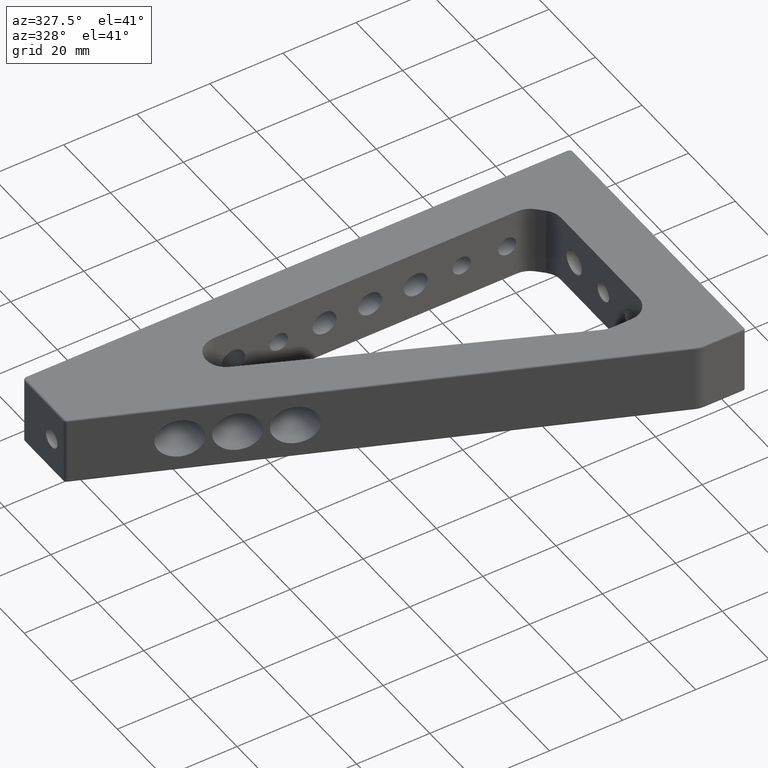
[diagram: clean part render]
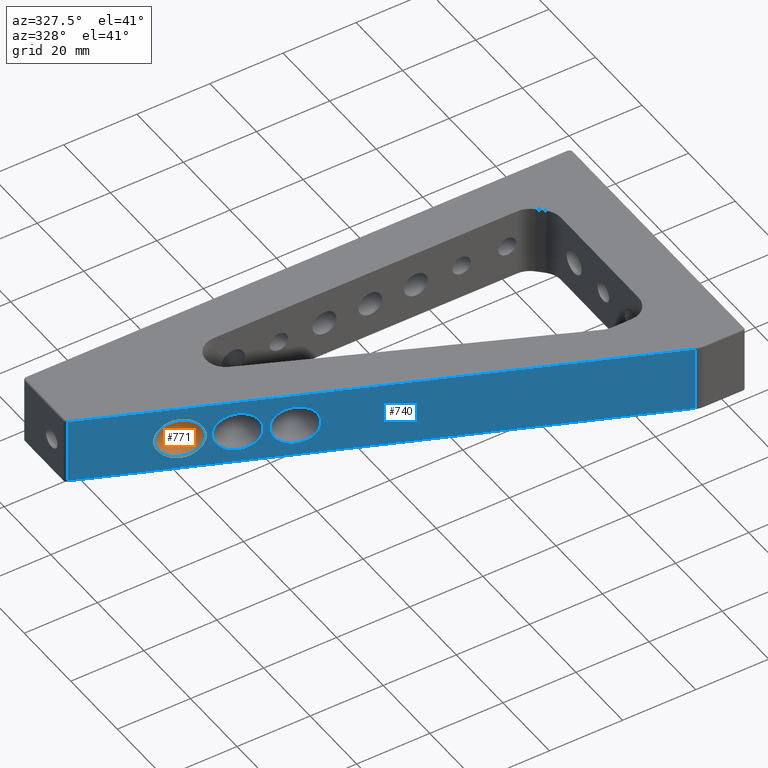
[diagram: same view with the hole feature highlighted: cylindrical wall and planar end face, labeled with their STEP entity ids]
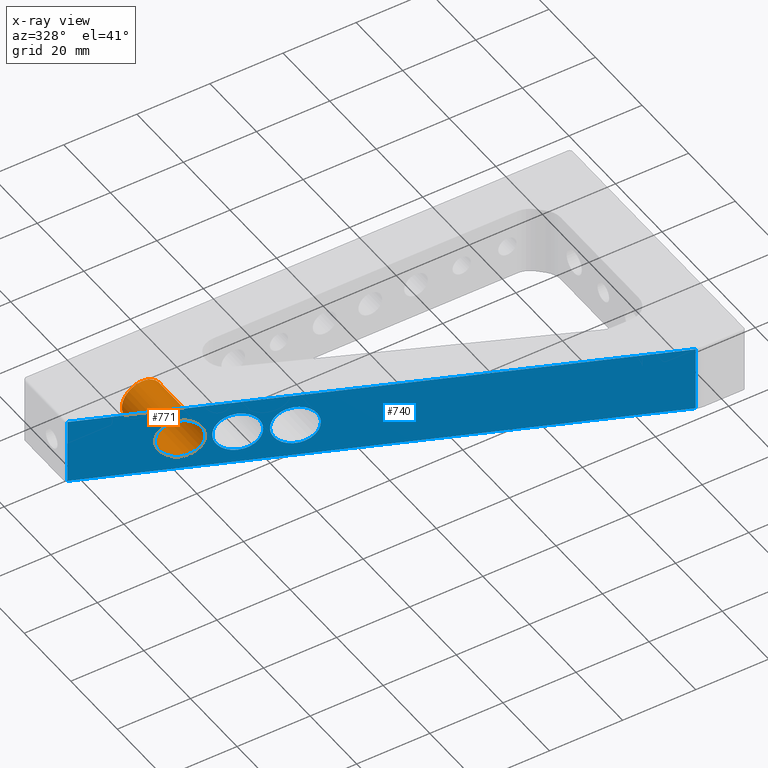
[diagram: x-ray of the same camera — body ghosted, the hole faces saturated]
A machine part, auxiliary view. The highlighted faces form one hole feature of diameter 11 mm: the cylindrical wall (entity #771, orange) and its adjacent planar end face (entity #740, blue) — they share a circular edge in the B-rep.
The next image is the same camera in x-ray (body ghosted, the hole faces saturated) — the bore reads through the body.
Wall:
#31 = CARTESIAN_POINT ( 'NONE',  ( 679.6671691626519300, 643.1374962495044700, 0.0000000000000000000 ) ) ;
#32 = DIRECTION ( 'NONE',  ( -0.0000000000000000000, 1.000000000000000000, -0.0000000000000000000 ) ) ;
#33 = DIRECTION ( 'NONE',  ( 0.0000000000000000000, 0.0000000000000000000, -1.000000000000000000 ) ) ;
#178 = EDGE_CURVE ( 'NONE', #1443, #1443, #854, .T. ) ;
#261 = DIRECTION ( 'NONE',  ( 0.0000000000000000000, 0.0000000000000000000, -1.000000000000000000 ) ) ;
#267 = CARTESIAN_POINT ( 'NONE',  ( 679.6671691626519300, 658.6938454356084100, 0.0000000000000000000 ) ) ;
#268 = DIRECTION ( 'NONE',  ( -0.0000000000000000000, -1.000000000000000000, -0.0000000000000000000 ) ) ;
#372 = AXIS2_PLACEMENT_3D ( 'NONE', #267, #268, #261 ) ;
#546 = CARTESIAN_POINT ( 'NONE',  ( 685.1671691626518200, 624.5039825971250600, -10.99999999999991700 ) ) ;
#556 = CARTESIAN_POINT ( 'NONE',  ( 685.1671691626518200, 624.5039825971250600, 0.0000000000000000000 ) ) ;
#557 = CARTESIAN_POINT ( 'NONE',  ( 674.1671691626519300, 629.0603317832291200, -10.99999999999991700 ) ) ;
#558 = CARTESIAN_POINT ( 'NONE',  ( 674.1671691626519300, 629.0603317832291200, -6.735557395310391700E-016 ) ) ;
#559 = CARTESIAN_POINT ( 'NONE',  ( 674.1671691626519300, 629.0603317832291200, 10.99999999999991700 ) ) ;
#560 = CARTESIAN_POINT ( 'NONE',  ( 685.1671691626518200, 624.5039825971250600, 10.99999999999991700 ) ) ;
#561 = CARTESIAN_POINT ( 'NONE',  ( 685.1671691626518200, 624.5039825971250600, 0.0000000000000000000 ) ) ;
#719 = EDGE_CURVE ( 'NONE', #1437, #1437, #2052, .T. ) ;
#771 = ADVANCED_FACE ( 'NONE', ( #1566, #1563 ), #1561, .F. ) ;
#854 = CIRCLE ( 'NONE', #1999, 5.499999999999959100 ) ;
#1070 = ORIENTED_EDGE ( 'NONE', *, *, #719, .F. ) ;
#1071 = ORIENTED_EDGE ( 'NONE', *, *, #178, .T. ) ;
#1311 = EDGE_LOOP ( 'NONE', ( #1070 ) ) ;
#1315 = EDGE_LOOP ( 'NONE', ( #1071 ) ) ;
#1437 = VERTEX_POINT ( 'NONE', #1801 ) ;
#1443 = VERTEX_POINT ( 'NONE', #1795 ) ;
#1561 = CYLINDRICAL_SURFACE ( 'NONE', #372, 5.499999999999959100 ) ;
#1563 = FACE_OUTER_BOUND ( 'NONE', #1311, .T. ) ;
#1566 = FACE_OUTER_BOUND ( 'NONE', #1315, .T. ) ;
#1795 = CARTESIAN_POINT ( 'NONE',  ( 679.6671691626519300, 643.1374962495044700, -5.499999999999959100 ) ) ;
#1801 = CARTESIAN_POINT ( 'NONE',  ( 685.1671691626518200, 624.5039825971250600, 0.0000000000000000000 ) ) ;
#1999 = AXIS2_PLACEMENT_3D ( 'NONE', #31, #32, #33 ) ;
#2052 =( BOUNDED_CURVE ( )  B_SPLINE_CURVE ( 3, ( #556, #546, #557, #558, #559, #560, #561 ),
 .UNSPECIFIED., .T., .T. ) 
 B_SPLINE_CURVE_WITH_KNOTS ( ( 4, 3, 4 ),
 ( 0.0000000000000000000, 3.141592653589793100, 6.283185307179586200 ),
 .UNSPECIFIED. ) 
 CURVE ( )  GEOMETRIC_REPRESENTATION_ITEM ( )  RATIONAL_B_SPLINE_CURVE ( ( 1.000000000000000000, 0.3333333333333333700, 0.3333333333333333700, 1.000000000000000000, 0.3333333333333333700, 0.3333333333333333700, 1.000000000000000000 ) ) 
 REPRESENTATION_ITEM ( '' )  );
End face:
#546 = CARTESIAN_POINT ( 'NONE',  ( 685.1671691626518200, 624.5039825971250600, -10.99999999999991700 ) ) ;
#556 = CARTESIAN_POINT ( 'NONE',  ( 685.1671691626518200, 624.5039825971250600, 0.0000000000000000000 ) ) ;
#557 = CARTESIAN_POINT ( 'NONE',  ( 674.1671691626519300, 629.0603317832291200, -10.99999999999991700 ) ) ;
#558 = CARTESIAN_POINT ( 'NONE',  ( 674.1671691626519300, 629.0603317832291200, -6.735557395310391700E-016 ) ) ;
#559 = CARTESIAN_POINT ( 'NONE',  ( 674.1671691626519300, 629.0603317832291200, 10.99999999999991700 ) ) ;
#560 = CARTESIAN_POINT ( 'NONE',  ( 685.1671691626518200, 624.5039825971250600, 10.99999999999991700 ) ) ;
#561 = CARTESIAN_POINT ( 'NONE',  ( 685.1671691626518200, 624.5039825971250600, 0.0000000000000000000 ) ) ;
#562 = CARTESIAN_POINT ( 'NONE',  ( 655.2844857302867500, 636.8817953549124700, 9.500000000000000000 ) ) ;
#563 = CARTESIAN_POINT ( 'NONE',  ( 697.6671691626518200, 619.3263130674613400, 0.0000000000000000000 ) ) ;
#564 = CARTESIAN_POINT ( 'NONE',  ( 697.6671691626518200, 619.3263130674613400, -10.99999999999991700 ) ) ;
#565 = CARTESIAN_POINT ( 'NONE',  ( 686.6671691626519300, 623.8826622535654000, -10.99999999999991700 ) ) ;
#566 = CARTESIAN_POINT ( 'NONE',  ( 686.6671691626519300, 623.8826622535654000, -6.735557395310391700E-016 ) ) ;
#567 = CARTESIAN_POINT ( 'NONE',  ( 686.6671691626519300, 623.8826622535654000, 10.99999999999991700 ) ) ;
#568 = CARTESIAN_POINT ( 'NONE',  ( 697.6671691626518200, 619.3263130674613400, 10.99999999999991700 ) ) ;
#569 = CARTESIAN_POINT ( 'NONE',  ( 697.6671691626518200, 619.3263130674613400, 0.0000000000000000000 ) ) ;
#570 = CARTESIAN_POINT ( 'NONE',  ( 655.2844857302867500, 636.8817953549124700, 9.000000000000000000 ) ) ;
#571 = CARTESIAN_POINT ( 'NONE',  ( 710.1671691626518200, 614.1486435377976200, 0.0000000000000000000 ) ) ;
#572 = CARTESIAN_POINT ( 'NONE',  ( 710.1671691626518200, 614.1486435377975100, -10.99999999999991700 ) ) ;
#573 = CARTESIAN_POINT ( 'NONE',  ( 699.1671691626518200, 618.7049927239015700, -10.99999999999991700 ) ) ;
#574 = CARTESIAN_POINT ( 'NONE',  ( 699.1671691626518200, 618.7049927239016800, -6.735557395310391700E-016 ) ) ;
#575 = CARTESIAN_POINT ( 'NONE',  ( 699.1671691626518200, 618.7049927239015700, 10.99999999999991700 ) ) ;
#576 = CARTESIAN_POINT ( 'NONE',  ( 710.1671691626518200, 614.1486435377975100, 10.99999999999991700 ) ) ;
#577 = CARTESIAN_POINT ( 'NONE',  ( 710.1671691626518200, 614.1486435377976200, 0.0000000000000000000 ) ) ;
#578 = DIRECTION ( 'NONE',  ( 0.9238795325112866300, -0.3826834323650901100, 0.0000000000000000000 ) ) ;
#580 = DIRECTION ( 'NONE',  ( 0.0000000000000000000, 0.0000000000000000000, -1.000000000000000000 ) ) ;
#581 = CARTESIAN_POINT ( 'NONE',  ( 654.6671691626519300, 637.1374962495044700, -9.000000000000000000 ) ) ;
#582 = CARTESIAN_POINT ( 'NONE',  ( 791.2666013604980400, 580.5561588206924200, 9.500000000000000000 ) ) ;
#584 = DIRECTION ( 'NONE',  ( -0.0000000000000000000, -0.0000000000000000000, -1.000000000000000000 ) ) ;
#585 = DIRECTION ( 'NONE',  ( -0.9238795325112866300, 0.3826834323650901100, -0.0000000000000000000 ) ) ;
#617 = DIRECTION ( 'NONE',  ( 0.3826834323650901100, 0.9238795325112866300, -0.0000000000000000000 ) ) ;
#621 = CARTESIAN_POINT ( 'NONE',  ( 654.6671691626519300, 637.1374962495044700, 9.500000000000000000 ) ) ;
#622 = PLANE ( 'NONE',  #659 ) ;
#623 = DIRECTION ( 'NONE',  ( -0.9238795325112866300, 0.3826834323650901100, 0.0000000000000000000 ) ) ;
#659 = AXIS2_PLACEMENT_3D ( 'NONE', #621, #617, #623 ) ;
#719 = EDGE_CURVE ( 'NONE', #1437, #1437, #2052, .T. ) ;
#720 = EDGE_CURVE ( 'NONE', #1436, #1436, #2059, .T. ) ;
#721 = EDGE_CURVE ( 'NONE', #1435, #1435, #2060, .T. ) ;
#722 = EDGE_CURVE ( 'NONE', #1233, #1256, #1386, .T. ) ;
#723 = EDGE_CURVE ( 'NONE', #1256, #1261, #1686, .T. ) ;
#724 = EDGE_CURVE ( 'NONE', #1260, #1261, #1685, .T. ) ;
#725 = EDGE_CURVE ( 'NONE', #1260, #1233, #1392, .T. ) ;
#740 = ADVANCED_FACE ( 'NONE', ( #1648, #1645, #1653, #1646 ), #622, .F. ) ;
#943 = ORIENTED_EDGE ( 'NONE', *, *, #720, .T. ) ;
#944 = ORIENTED_EDGE ( 'NONE', *, *, #719, .T. ) ;
#946 = ORIENTED_EDGE ( 'NONE', *, *, #722, .T. ) ;
#949 = ORIENTED_EDGE ( 'NONE', *, *, #721, .T. ) ;
#951 = ORIENTED_EDGE ( 'NONE', *, *, #723, .T. ) ;
#953 = ORIENTED_EDGE ( 'NONE', *, *, #725, .T. ) ;
#954 = ORIENTED_EDGE ( 'NONE', *, *, #724, .F. ) ;
#1013 = EDGE_LOOP ( 'NONE', ( #944 ) ) ;
#1021 = EDGE_LOOP ( 'NONE', ( #943 ) ) ;
#1233 = VERTEX_POINT ( 'NONE', #1908 ) ;
#1256 = VERTEX_POINT ( 'NONE', #1930 ) ;
#1260 = VERTEX_POINT ( 'NONE', #1934 ) ;
#1261 = VERTEX_POINT ( 'NONE', #1935 ) ;
#1350 = EDGE_LOOP ( 'NONE', ( #949 ) ) ;
#1367 = EDGE_LOOP ( 'NONE', ( #946, #951, #954, #953 ) ) ;
#1386 = LINE ( 'NONE', #562, #1388 ) ;
#1388 = VECTOR ( 'NONE', #580, 1000.000000000000000 ) ;
#1392 = LINE ( 'NONE', #570, #1681 ) ;
#1395 = VECTOR ( 'NONE', #578, 1000.000000000000000 ) ;
#1435 = VERTEX_POINT ( 'NONE', #1803 ) ;
#1436 = VERTEX_POINT ( 'NONE', #1802 ) ;
#1437 = VERTEX_POINT ( 'NONE', #1801 ) ;
#1645 = FACE_BOUND ( 'NONE', #1021, .T. ) ;
#1646 = FACE_OUTER_BOUND ( 'NONE', #1367, .T. ) ;
#1648 = FACE_BOUND ( 'NONE', #1013, .T. ) ;
#1653 = FACE_BOUND ( 'NONE', #1350, .T. ) ;
#1681 = VECTOR ( 'NONE', #585, 1000.000000000000000 ) ;
#1683 = VECTOR ( 'NONE', #584, 1000.000000000000000 ) ;
#1685 = LINE ( 'NONE', #582, #1683 ) ;
#1686 = LINE ( 'NONE', #581, #1395 ) ;
#1801 = CARTESIAN_POINT ( 'NONE',  ( 685.1671691626518200, 624.5039825971250600, 0.0000000000000000000 ) ) ;
#1802 = CARTESIAN_POINT ( 'NONE',  ( 697.6671691626518200, 619.3263130674613400, 0.0000000000000000000 ) ) ;
#1803 = CARTESIAN_POINT ( 'NONE',  ( 710.1671691626518200, 614.1486435377976200, 0.0000000000000000000 ) ) ;
#1908 = CARTESIAN_POINT ( 'NONE',  ( 655.2844857302867500, 636.8817953549124700, 9.000000000000000000 ) ) ;
#1930 = CARTESIAN_POINT ( 'NONE',  ( 655.2844857302867500, 636.8817953549124700, -9.000000000000007100 ) ) ;
#1934 = CARTESIAN_POINT ( 'NONE',  ( 791.2666013604980400, 580.5561588206924200, 9.000000000000000000 ) ) ;
#1935 = CARTESIAN_POINT ( 'NONE',  ( 791.2666013604980400, 580.5561588206924200, -9.000000000000000000 ) ) ;
#2052 =( BOUNDED_CURVE ( )  B_SPLINE_CURVE ( 3, ( #556, #546, #557, #558, #559, #560, #561 ),
 .UNSPECIFIED., .T., .T. ) 
 B_SPLINE_CURVE_WITH_KNOTS ( ( 4, 3, 4 ),
 ( 0.0000000000000000000, 3.141592653589793100, 6.283185307179586200 ),
 .UNSPECIFIED. ) 
 CURVE ( )  GEOMETRIC_REPRESENTATION_ITEM ( )  RATIONAL_B_SPLINE_CURVE ( ( 1.000000000000000000, 0.3333333333333333700, 0.3333333333333333700, 1.000000000000000000, 0.3333333333333333700, 0.3333333333333333700, 1.000000000000000000 ) ) 
 REPRESENTATION_ITEM ( '' )  );
#2059 =( BOUNDED_CURVE ( )  B_SPLINE_CURVE ( 3, ( #563, #564, #565, #566, #567, #568, #569 ),
 .UNSPECIFIED., .T., .T. ) 
 B_SPLINE_CURVE_WITH_KNOTS ( ( 4, 3, 4 ),
 ( 0.0000000000000000000, 3.141592653589793100, 6.283185307179586200 ),
 .UNSPECIFIED. ) 
 CURVE ( )  GEOMETRIC_REPRESENTATION_ITEM ( )  RATIONAL_B_SPLINE_CURVE ( ( 1.000000000000000000, 0.3333333333333333700, 0.3333333333333333700, 1.000000000000000000, 0.3333333333333333700, 0.3333333333333333700, 1.000000000000000000 ) ) 
 REPRESENTATION_ITEM ( '' )  );
#2060 =( BOUNDED_CURVE ( )  B_SPLINE_CURVE ( 3, ( #571, #572, #573, #574, #575, #576, #577 ),
 .UNSPECIFIED., .T., .T. ) 
 B_SPLINE_CURVE_WITH_KNOTS ( ( 4, 3, 4 ),
 ( 0.0000000000000000000, 3.141592653589793100, 6.283185307179586200 ),
 .UNSPECIFIED. ) 
 CURVE ( )  GEOMETRIC_REPRESENTATION_ITEM ( )  RATIONAL_B_SPLINE_CURVE ( ( 1.000000000000000000, 0.3333333333333333700, 0.3333333333333333700, 1.000000000000000000, 0.3333333333333333700, 0.3333333333333333700, 1.000000000000000000 ) ) 
 REPRESENTATION_ITEM ( '' )  );